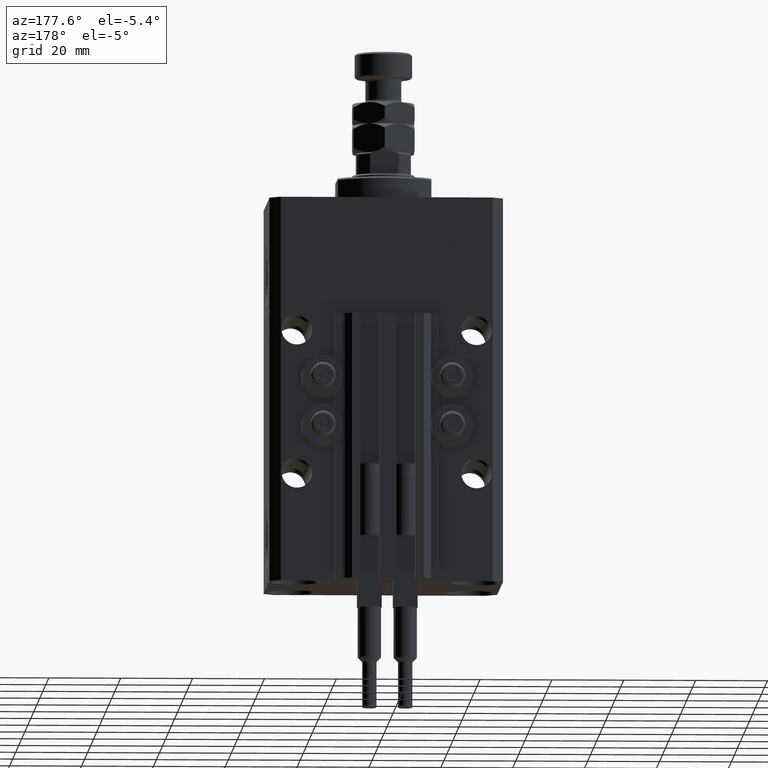
[diagram: clean part render]
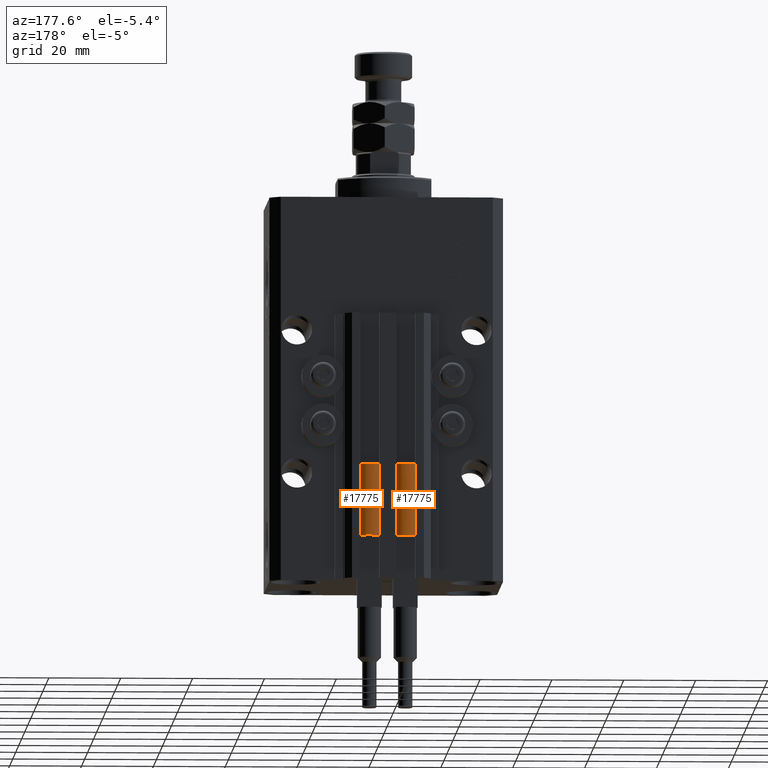
[diagram: same view with one multi-face feature highlighted, each face labeled with its STEP entity id]
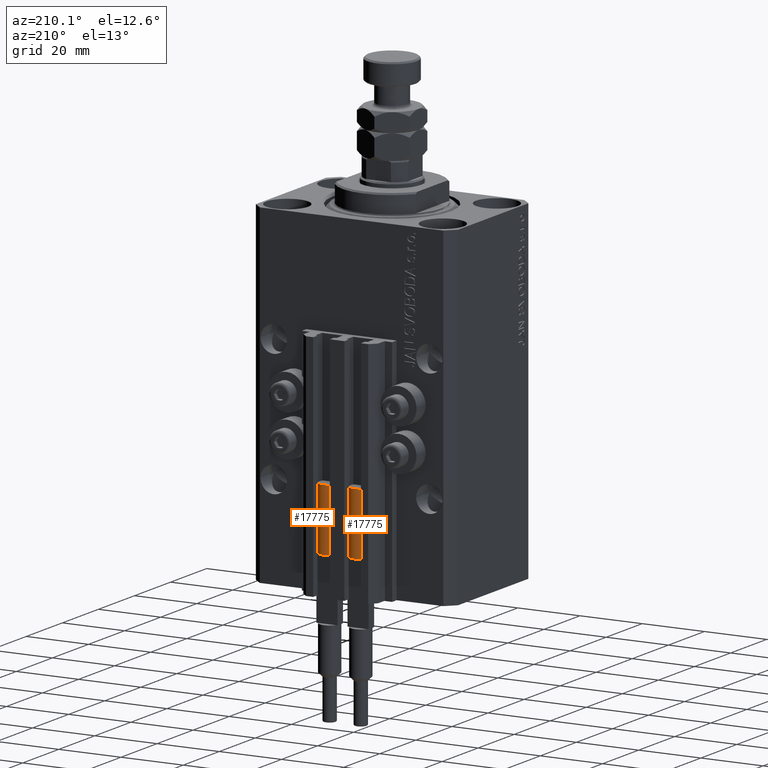
[diagram: same view with one multi-face feature highlighted, each face labeled with its STEP entity id]
A machine part, auxiliary view. The highlighted faces form ONE feature: a constant-radius fillet chain: 2 tangent blend faces with common blend radius 3.4 mm. The faces share edges in the B-rep.
A second angle (auxiliary view) of the same feature is appended — it is thin or edge-on in the first view.
Their STEP definitions:
[1] entity #17775 (Cylinder):
#620 = CARTESIAN_POINT ( 'NONE',  ( 0.000000000000000000, 0.000000000000000000, 20.00000000000000000 ) ) ;
#1501 = DIRECTION ( 'NONE',  ( 1.000000000000000000, 0.000000000000000000, 0.000000000000000000 ) ) ;
#1520 = EDGE_LOOP ( 'NONE', ( #39758, #35425, #13947, #48706, #6909, #24393 ) ) ;
#1974 = DIRECTION ( 'NONE',  ( -0.000000000000000000, -0.000000000000000000, -1.000000000000000000 ) ) ;
#4194 = EDGE_CURVE ( 'NONE', #39359, #10273, #17213, .T. ) ;
#5028 = CARTESIAN_POINT ( 'NONE',  ( 3.400000000000000355, 4.163799117101001052E-16, 20.00000000000000000 ) ) ;
#6909 = ORIENTED_EDGE ( 'NONE', *, *, #46934, .F. ) ;
#6956 = CARTESIAN_POINT ( 'NONE',  ( -3.400000000000000355, 0.000000000000000000, 0.000000000000000000 ) ) ;
#6983 = CARTESIAN_POINT ( 'NONE',  ( -3.399999999999999467, -4.915049848600952119E-16, 20.00000000000000000 ) ) ;
#7729 = CARTESIAN_POINT ( 'NONE',  ( 3.051229260478471428, 1.500000000000000000, 20.00000000000000000 ) ) ;
#7983 = DIRECTION ( 'NONE',  ( -0.000000000000000000, -0.000000000000000000, -1.000000000000000000 ) ) ;
#8393 = VECTOR ( 'NONE', #12643, 1000.000000000000000 ) ;
#8800 = CIRCLE ( 'NONE', #37186, 3.400000000000000355 ) ;
#9794 = AXIS2_PLACEMENT_3D ( 'NONE', #37878, #49791, #22648 ) ;
#9965 = CIRCLE ( 'NONE', #14862, 3.400000000000000355 ) ;
#10273 = VERTEX_POINT ( 'NONE', #40470 ) ;
#12204 = CIRCLE ( 'NONE', #9794, 3.400000000000000355 ) ;
#12643 = DIRECTION ( 'NONE',  ( -0.000000000000000000, -0.000000000000000000, -1.000000000000000000 ) ) ;
#13947 = ORIENTED_EDGE ( 'NONE', *, *, #20784, .T. ) ;
#14862 = AXIS2_PLACEMENT_3D ( 'NONE', #36785, #21549, #1501 ) ;
#15907 = VERTEX_POINT ( 'NONE', #7729 ) ;
#16443 = CARTESIAN_POINT ( 'NONE',  ( -3.400000000000000355, 0.000000000000000000, 20.00000000000000000 ) ) ;
#17213 = LINE ( 'NONE', #5028, #34048 ) ;
#17775 = ADVANCED_FACE ( 'NONE', ( #35409 ), #43518, .T. ) ;
#18143 = AXIS2_PLACEMENT_3D ( 'NONE', #620, #7983, #47068 ) ;
#20784 = EDGE_CURVE ( 'NONE', #10273, #49712, #23952, .T. ) ;
#21549 = DIRECTION ( 'NONE',  ( 0.000000000000000000, 0.000000000000000000, 1.000000000000000000 ) ) ;
#22648 = DIRECTION ( 'NONE',  ( 1.000000000000000000, 0.000000000000000000, 0.000000000000000000 ) ) ;
#23952 = CIRCLE ( 'NONE', #26375, 3.400000000000000355 ) ;
#24213 = CARTESIAN_POINT ( 'NONE',  ( 0.000000000000000000, 0.000000000000000000, 0.000000000000000000 ) ) ;
#24393 = ORIENTED_EDGE ( 'NONE', *, *, #27256, .F. ) ;
#26375 = AXIS2_PLACEMENT_3D ( 'NONE', #24213, #32086, #44002 ) ;
#27256 = EDGE_CURVE ( 'NONE', #15907, #48137, #12204, .T. ) ;
#28648 = LINE ( 'NONE', #16443, #8393 ) ;
#29976 = CARTESIAN_POINT ( 'NONE',  ( -3.051229260478471428, 1.500000000000000000, 20.00000000000000000 ) ) ;
#32086 = DIRECTION ( 'NONE',  ( 0.000000000000000000, 0.000000000000000000, 1.000000000000000000 ) ) ;
#32377 = EDGE_CURVE ( 'NONE', #39359, #15907, #9965, .T. ) ;
#33341 = DIRECTION ( 'NONE',  ( 0.000000000000000000, 0.000000000000000000, 1.000000000000000000 ) ) ;
#33741 = EDGE_CURVE ( 'NONE', #44170, #49712, #28648, .T. ) ;
#34048 = VECTOR ( 'NONE', #1974, 1000.000000000000000 ) ;
#34344 = DIRECTION ( 'NONE',  ( 1.000000000000000000, 0.000000000000000000, 0.000000000000000000 ) ) ;
#35409 = FACE_OUTER_BOUND ( 'NONE', #1520, .T. ) ;
#35425 = ORIENTED_EDGE ( 'NONE', *, *, #4194, .T. ) ;
#35735 = CARTESIAN_POINT ( 'NONE',  ( 3.400000000000000355, 0.000000000000000000, 20.00000000000000000 ) ) ;
#36785 = CARTESIAN_POINT ( 'NONE',  ( 0.000000000000000000, 0.000000000000000000, 20.00000000000000000 ) ) ;
#37186 = AXIS2_PLACEMENT_3D ( 'NONE', #41692, #33341, #34344 ) ;
#37878 = CARTESIAN_POINT ( 'NONE',  ( 0.000000000000000000, 0.000000000000000000, 20.00000000000000000 ) ) ;
#39359 = VERTEX_POINT ( 'NONE', #35735 ) ;
#39758 = ORIENTED_EDGE ( 'NONE', *, *, #32377, .F. ) ;
#40470 = CARTESIAN_POINT ( 'NONE',  ( 3.400000000000000355, 4.163799117101001052E-16, 0.000000000000000000 ) ) ;
#41692 = CARTESIAN_POINT ( 'NONE',  ( 0.000000000000000000, 0.000000000000000000, 20.00000000000000000 ) ) ;
#43518 = CYLINDRICAL_SURFACE ( 'NONE', #18143, 3.400000000000000355 ) ;
#44002 = DIRECTION ( 'NONE',  ( 1.000000000000000000, 0.000000000000000000, 0.000000000000000000 ) ) ;
#44170 = VERTEX_POINT ( 'NONE', #6983 ) ;
#46934 = EDGE_CURVE ( 'NONE', #48137, #44170, #8800, .T. ) ;
#47068 = DIRECTION ( 'NONE',  ( -1.000000000000000000, 0.000000000000000000, 0.000000000000000000 ) ) ;
#48137 = VERTEX_POINT ( 'NONE', #29976 ) ;
#48706 = ORIENTED_EDGE ( 'NONE', *, *, #33741, .F. ) ;
#49712 = VERTEX_POINT ( 'NONE', #6956 ) ;
#49791 = DIRECTION ( 'NONE',  ( 0.000000000000000000, 0.000000000000000000, 1.000000000000000000 ) ) ;
[2] entity #17775 (Cylinder):
#620 = CARTESIAN_POINT ( 'NONE',  ( 0.000000000000000000, 0.000000000000000000, 20.00000000000000000 ) ) ;
#1501 = DIRECTION ( 'NONE',  ( 1.000000000000000000, 0.000000000000000000, 0.000000000000000000 ) ) ;
#1520 = EDGE_LOOP ( 'NONE', ( #39758, #35425, #13947, #48706, #6909, #24393 ) ) ;
#1974 = DIRECTION ( 'NONE',  ( -0.000000000000000000, -0.000000000000000000, -1.000000000000000000 ) ) ;
#4194 = EDGE_CURVE ( 'NONE', #39359, #10273, #17213, .T. ) ;
#5028 = CARTESIAN_POINT ( 'NONE',  ( 3.400000000000000355, 4.163799117101001052E-16, 20.00000000000000000 ) ) ;
#6909 = ORIENTED_EDGE ( 'NONE', *, *, #46934, .F. ) ;
#6956 = CARTESIAN_POINT ( 'NONE',  ( -3.400000000000000355, 0.000000000000000000, 0.000000000000000000 ) ) ;
#6983 = CARTESIAN_POINT ( 'NONE',  ( -3.399999999999999467, -4.915049848600952119E-16, 20.00000000000000000 ) ) ;
#7729 = CARTESIAN_POINT ( 'NONE',  ( 3.051229260478471428, 1.500000000000000000, 20.00000000000000000 ) ) ;
#7983 = DIRECTION ( 'NONE',  ( -0.000000000000000000, -0.000000000000000000, -1.000000000000000000 ) ) ;
#8393 = VECTOR ( 'NONE', #12643, 1000.000000000000000 ) ;
#8800 = CIRCLE ( 'NONE', #37186, 3.400000000000000355 ) ;
#9794 = AXIS2_PLACEMENT_3D ( 'NONE', #37878, #49791, #22648 ) ;
#9965 = CIRCLE ( 'NONE', #14862, 3.400000000000000355 ) ;
#10273 = VERTEX_POINT ( 'NONE', #40470 ) ;
#12204 = CIRCLE ( 'NONE', #9794, 3.400000000000000355 ) ;
#12643 = DIRECTION ( 'NONE',  ( -0.000000000000000000, -0.000000000000000000, -1.000000000000000000 ) ) ;
#13947 = ORIENTED_EDGE ( 'NONE', *, *, #20784, .T. ) ;
#14862 = AXIS2_PLACEMENT_3D ( 'NONE', #36785, #21549, #1501 ) ;
#15907 = VERTEX_POINT ( 'NONE', #7729 ) ;
#16443 = CARTESIAN_POINT ( 'NONE',  ( -3.400000000000000355, 0.000000000000000000, 20.00000000000000000 ) ) ;
#17213 = LINE ( 'NONE', #5028, #34048 ) ;
#17775 = ADVANCED_FACE ( 'NONE', ( #35409 ), #43518, .T. ) ;
#18143 = AXIS2_PLACEMENT_3D ( 'NONE', #620, #7983, #47068 ) ;
#20784 = EDGE_CURVE ( 'NONE', #10273, #49712, #23952, .T. ) ;
#21549 = DIRECTION ( 'NONE',  ( 0.000000000000000000, 0.000000000000000000, 1.000000000000000000 ) ) ;
#22648 = DIRECTION ( 'NONE',  ( 1.000000000000000000, 0.000000000000000000, 0.000000000000000000 ) ) ;
#23952 = CIRCLE ( 'NONE', #26375, 3.400000000000000355 ) ;
#24213 = CARTESIAN_POINT ( 'NONE',  ( 0.000000000000000000, 0.000000000000000000, 0.000000000000000000 ) ) ;
#24393 = ORIENTED_EDGE ( 'NONE', *, *, #27256, .F. ) ;
#26375 = AXIS2_PLACEMENT_3D ( 'NONE', #24213, #32086, #44002 ) ;
#27256 = EDGE_CURVE ( 'NONE', #15907, #48137, #12204, .T. ) ;
#28648 = LINE ( 'NONE', #16443, #8393 ) ;
#29976 = CARTESIAN_POINT ( 'NONE',  ( -3.051229260478471428, 1.500000000000000000, 20.00000000000000000 ) ) ;
#32086 = DIRECTION ( 'NONE',  ( 0.000000000000000000, 0.000000000000000000, 1.000000000000000000 ) ) ;
#32377 = EDGE_CURVE ( 'NONE', #39359, #15907, #9965, .T. ) ;
#33341 = DIRECTION ( 'NONE',  ( 0.000000000000000000, 0.000000000000000000, 1.000000000000000000 ) ) ;
#33741 = EDGE_CURVE ( 'NONE', #44170, #49712, #28648, .T. ) ;
#34048 = VECTOR ( 'NONE', #1974, 1000.000000000000000 ) ;
#34344 = DIRECTION ( 'NONE',  ( 1.000000000000000000, 0.000000000000000000, 0.000000000000000000 ) ) ;
#35409 = FACE_OUTER_BOUND ( 'NONE', #1520, .T. ) ;
#35425 = ORIENTED_EDGE ( 'NONE', *, *, #4194, .T. ) ;
#35735 = CARTESIAN_POINT ( 'NONE',  ( 3.400000000000000355, 0.000000000000000000, 20.00000000000000000 ) ) ;
#36785 = CARTESIAN_POINT ( 'NONE',  ( 0.000000000000000000, 0.000000000000000000, 20.00000000000000000 ) ) ;
#37186 = AXIS2_PLACEMENT_3D ( 'NONE', #41692, #33341, #34344 ) ;
#37878 = CARTESIAN_POINT ( 'NONE',  ( 0.000000000000000000, 0.000000000000000000, 20.00000000000000000 ) ) ;
#39359 = VERTEX_POINT ( 'NONE', #35735 ) ;
#39758 = ORIENTED_EDGE ( 'NONE', *, *, #32377, .F. ) ;
#40470 = CARTESIAN_POINT ( 'NONE',  ( 3.400000000000000355, 4.163799117101001052E-16, 0.000000000000000000 ) ) ;
#41692 = CARTESIAN_POINT ( 'NONE',  ( 0.000000000000000000, 0.000000000000000000, 20.00000000000000000 ) ) ;
#43518 = CYLINDRICAL_SURFACE ( 'NONE', #18143, 3.400000000000000355 ) ;
#44002 = DIRECTION ( 'NONE',  ( 1.000000000000000000, 0.000000000000000000, 0.000000000000000000 ) ) ;
#44170 = VERTEX_POINT ( 'NONE', #6983 ) ;
#46934 = EDGE_CURVE ( 'NONE', #48137, #44170, #8800, .T. ) ;
#47068 = DIRECTION ( 'NONE',  ( -1.000000000000000000, 0.000000000000000000, 0.000000000000000000 ) ) ;
#48137 = VERTEX_POINT ( 'NONE', #29976 ) ;
#48706 = ORIENTED_EDGE ( 'NONE', *, *, #33741, .F. ) ;
#49712 = VERTEX_POINT ( 'NONE', #6956 ) ;
#49791 = DIRECTION ( 'NONE',  ( 0.000000000000000000, 0.000000000000000000, 1.000000000000000000 ) ) ;